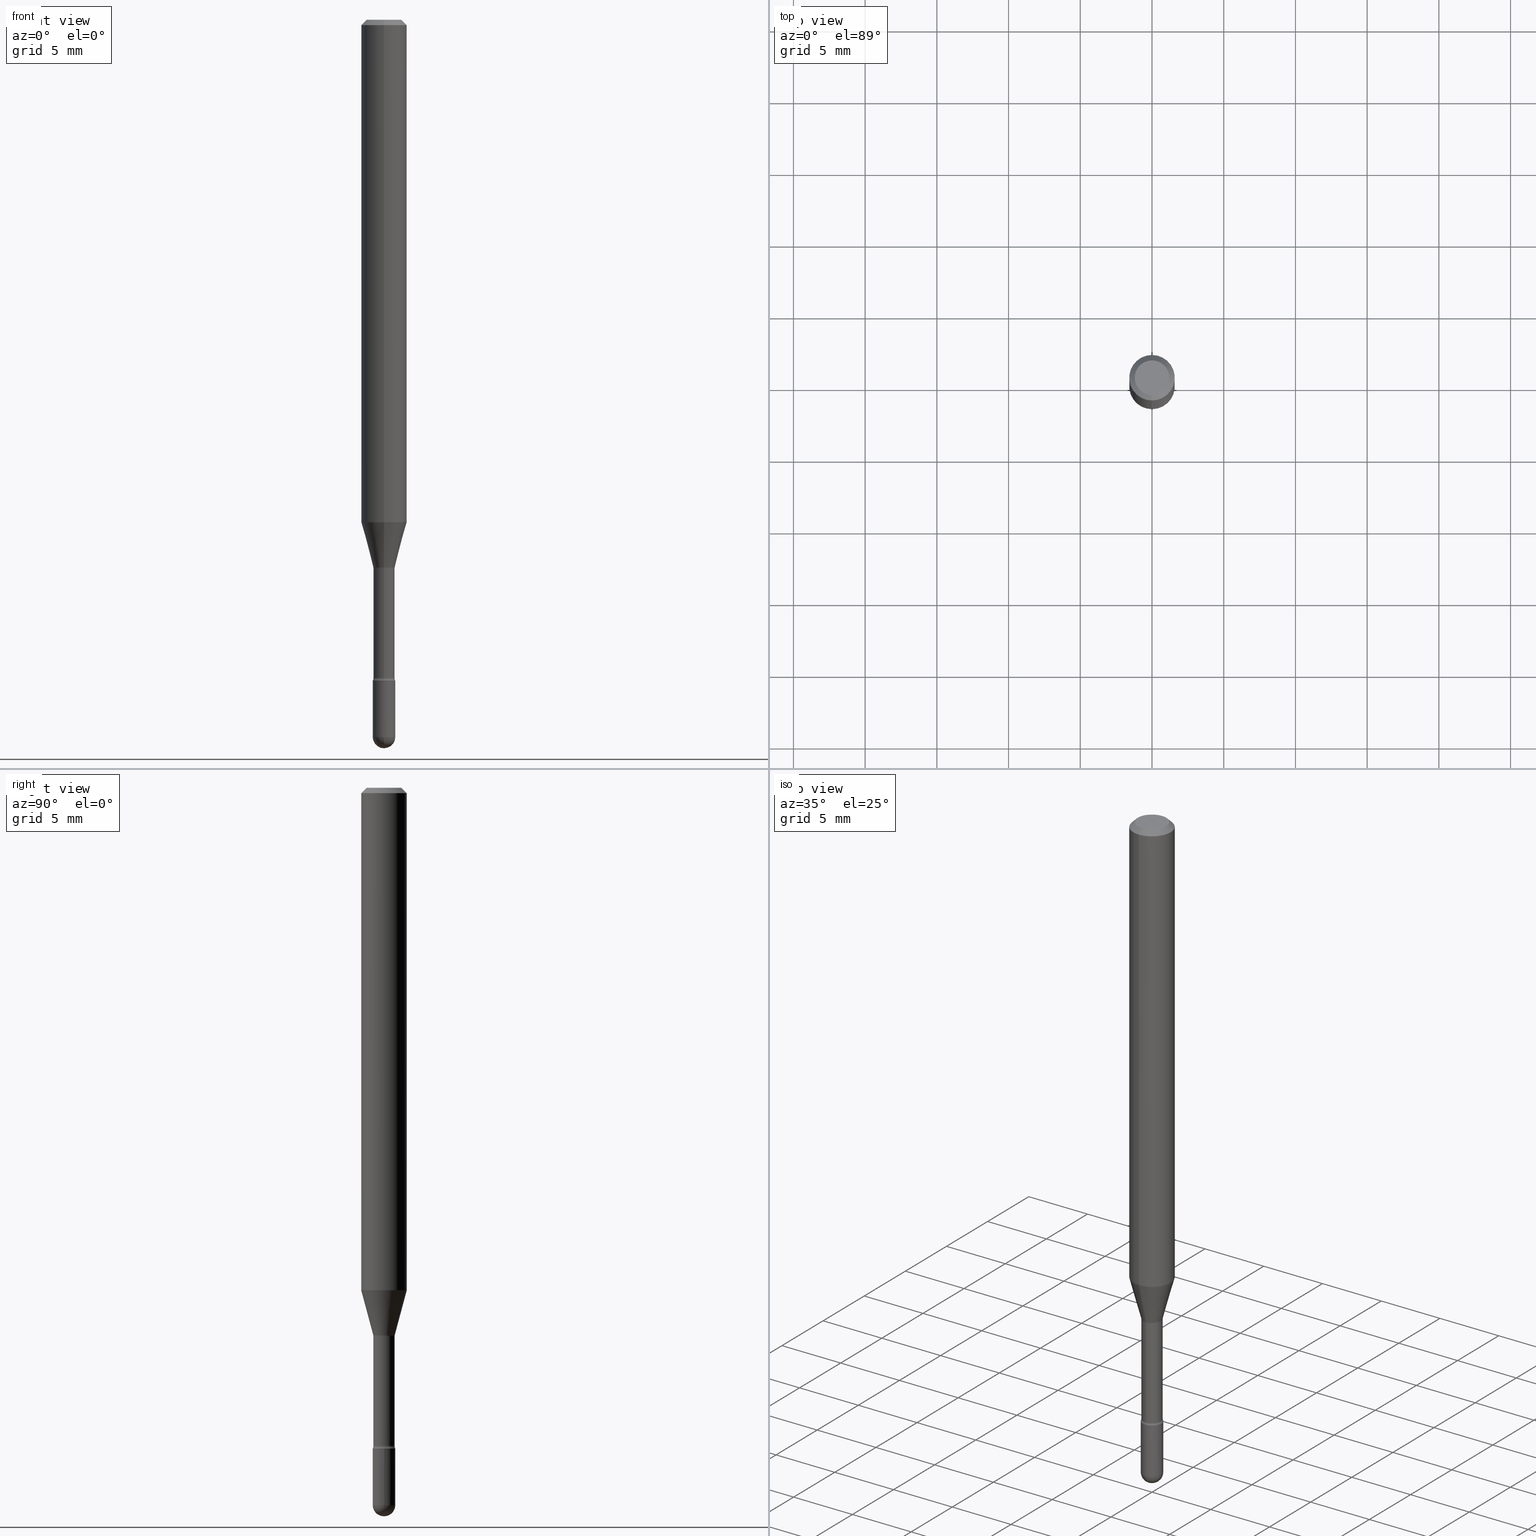
[diagram: canonical four-view strip — front | top / right | iso, engineering-drawing reading convention]
A machine part, canonical four-view strip (front | top / right | iso — engineering-drawing reading convention). The complete STEP part file that produces these views, byte-faithful:
ISO-10303-21;
HEADER;
FILE_DESCRIPTION (( 'STEP AP203' ),
    '1' );
FILE_NAME ('01596.STEP',
    '2024-04-09T20:08:11',
    ( '' ),
    ( '' ),
    'SwSTEP 2.0',
    'SolidWorks 2023',
    '' );
FILE_SCHEMA (( 'CONFIG_CONTROL_DESIGN' ));
ENDSEC;

DATA;
#1 = CARTESIAN_POINT ( 'NONE',  ( 4.815128079378534076E-29, -6.874726756182154000E-15, -1.969000000000000306 ) ) ;
#2 = ORIENTED_EDGE ( 'NONE', *, *, #336, .F. ) ;
#3 = ADVANCED_FACE ( 'NONE', ( #396 ), #367, .T. ) ;
#4 = DIRECTION ( 'NONE',  ( -6.982962677686265922E-15, -1.000000000000000000, 0.000000000000000000 ) ) ;
#5 = VERTEX_POINT ( 'NONE', #11 ) ;
#6 = VERTEX_POINT ( 'NONE', #444 ) ;
#7 = DIRECTION ( 'NONE',  ( -6.982962677686265922E-15, -1.000000000000000000, 0.000000000000000000 ) ) ;
#8 = VECTOR ( 'NONE', #127, 39.37007874015748143 ) ;
#9 = CARTESIAN_POINT ( 'NONE',  ( 3.673298962196712735E-29, -5.244558577962036648E-15, -1.502092501787273271 ) ) ;
#10 = DIRECTION ( 'NONE',  ( -2.445454562768948999E-29, 3.491501736225811078E-15, 1.000000000000000000 ) ) ;
#11 = CARTESIAN_POINT ( 'NONE',  ( -0.03099999999999999978, -6.383868704336178649E-15, -1.969000000000000306 ) ) ;
#12 = EDGE_LOOP ( 'NONE', ( #221, #493, #95, #306 ) ) ;
#13 = DIRECTION ( 'NONE',  ( 6.982962677686265922E-15, 1.000000000000000000, -3.491501736225811078E-15 ) ) ;
#14 = ORIENTED_EDGE ( 'NONE', *, *, #504, .T. ) ;
#15 = PRODUCT_DEFINITION_FORMATION_WITH_SPECIFIED_SOURCE ( 'ANY', '', #121, .NOT_KNOWN. ) ;
#16 = VERTEX_POINT ( 'NONE', #143 ) ;
#17 = ORIENTED_EDGE ( 'NONE', *, *, #355, .T. ) ;
#18 = ORIENTED_EDGE ( 'NONE', *, *, #483, .T. ) ;
#19 = EDGE_CURVE ( 'NONE', #189, #549, #76, .T. ) ;
#20 = ORIENTED_EDGE ( 'NONE', *, *, #110, .F. ) ;
#21 = AXIS2_PLACEMENT_3D ( 'NONE', #422, #75, #419 ) ;
#22 = APPLICATION_PROTOCOL_DEFINITION ( 'international standard', 'config_control_design', 1994, #247 ) ;
#23 = ORIENTED_EDGE ( 'NONE', *, *, #393, .F. ) ;
#24 = DIRECTION ( 'NONE',  ( -6.982962677686265922E-15, -1.000000000000000000, 3.491501736225811078E-15 ) ) ;
#25 = CARTESIAN_POINT ( 'NONE',  ( 2.107548809652055165E-16, 0.02966111260565873833, -1.502092501787273271 ) ) ;
#26 = PERSON_AND_ORGANIZATION ( #415, #431 ) ;
#27 = FACE_OUTER_BOUND ( 'NONE', #178, .T. ) ;
#28 = CIRCLE ( 'NONE', #337, 0.03099999999999999978 ) ;
#29 = AXIS2_PLACEMENT_3D ( 'NONE', #521, #64, #13 ) ;
#30 = PERSON_AND_ORGANIZATION ( #415, #431 ) ;
#31 = CYLINDRICAL_SURFACE ( 'NONE', #206, 0.03099999999999999978 ) ;
#32 = EDGE_CURVE ( 'NONE', #190, #536, #297, .T. ) ;
#33 = PERSON_AND_ORGANIZATION_ROLE ( 'classification_officer' ) ;
#34 = DIRECTION ( 'NONE',  ( 1.000000000000000000, -6.982962677686266711E-15, 4.876176775795935232E-29 ) ) ;
#35 = LOCAL_TIME ( 16, 8, 11.00000000000000000, #423 ) ;
#36 = CARTESIAN_POINT ( 'NONE',  ( 2.023449283951162284E-45, -2.889177747602857165E-31, -8.274606319586870725E-17 ) ) ;
#37 = EDGE_CURVE ( 'NONE', #6, #315, #240, .T. ) ;
#38 = UNCERTAINTY_MEASURE_WITH_UNIT (LENGTH_MEASURE( 1.000000000000000082E-05 ), #545, 'distance_accuracy_value', 'NONE');
#39 = CIRCLE ( 'NONE', #46, 0.04749999999999999362 ) ;
#40 = DATE_TIME_ROLE ( 'classification_date' ) ;
#41 = DIRECTION ( 'NONE',  ( -6.982962677686265922E-15, -1.000000000000000000, 3.491501736225812656E-15 ) ) ;
#42 = ADVANCED_FACE ( 'NONE', ( #120 ), #466, .F. ) ;
#43 = LINE ( 'NONE', #554, #8 ) ;
#44 = DIMENSIONAL_EXPONENTS ( 1.000000000000000000, 0.000000000000000000, 0.000000000000000000, 0.000000000000000000, 0.000000000000000000, 0.000000000000000000, 0.000000000000000000 ) ;
#45 = DIRECTION ( 'NONE',  ( -6.982962677686265922E-15, -1.000000000000000000, 3.491501736225811078E-15 ) ) ;
#46 = AXIS2_PLACEMENT_3D ( 'NONE', #36, #90, #558 ) ;
#47 = CIRCLE ( 'NONE', #447, 0.01500000000000001159 ) ;
#48 = CARTESIAN_POINT ( 'NONE',  ( 0.000000000000000000, 0.000000000000000000, 0.000000000000000000 ) ) ;
#49 = ORIENTED_EDGE ( 'NONE', *, *, #375, .T. ) ;
#50 = DIRECTION ( 'NONE',  ( -6.982962677686266711E-15, -1.000000000000000000, 0.000000000000000000 ) ) ;
#51 = ORIENTED_EDGE ( 'NONE', *, *, #400, .T. ) ;
#52 = VERTEX_POINT ( 'NONE', #465 ) ;
#53 = FACE_OUTER_BOUND ( 'NONE', #346, .T. ) ;
#54 = ORIENTED_EDGE ( 'NONE', *, *, #32, .T. ) ;
#55 = ADVANCED_FACE ( 'NONE', ( #195 ), #457, .T. ) ;
#56 = ORIENTED_EDGE ( 'NONE', *, *, #252, .T. ) ;
#57 = CARTESIAN_POINT ( 'NONE',  ( -1.169113584055446105E-44, 1.669184350826100908E-30, 4.780733988912460139E-16 ) ) ;
#58 = VECTOR ( 'NONE', #430, 39.37007874015748143 ) ;
#59 = TOROIDAL_SURFACE ( 'NONE', #357, 0.04415000000000000174, 0.01500000000000002373 ) ;
#60 = EDGE_LOOP ( 'NONE', ( #304, #437, #106, #63 ) ) ;
#61 = AXIS2_PLACEMENT_3D ( 'NONE', #320, #289, #464 ) ;
#62 = DIRECTION ( 'NONE',  ( -2.445454562768948999E-29, 3.491501736225811078E-15, 1.000000000000000000 ) ) ;
#63 = ORIENTED_EDGE ( 'NONE', *, *, #124, .F. ) ;
#64 = DIRECTION ( 'NONE',  ( 2.445454562768948718E-29, -3.491501736225811078E-15, -1.000000000000000000 ) ) ;
#65 = ORIENTED_EDGE ( 'NONE', *, *, #92, .F. ) ;
#66 = ORIENTED_EDGE ( 'NONE', *, *, #293, .T. ) ;
#67 = FACE_OUTER_BOUND ( 'NONE', #449, .T. ) ;
#68 = AXIS2_PLACEMENT_3D ( 'NONE', #506, #410, #24 ) ;
#69 = CONICAL_SURFACE ( 'NONE', #292, 0.06250000000000000000, 0.7853981633974483900 ) ;
#70 = ADVANCED_FACE ( 'NONE', ( #281 ), #172, .F. ) ;
#71 = PERSON_AND_ORGANIZATION ( #415, #431 ) ;
#72 = DIRECTION ( 'NONE',  ( -2.445468806185136597E-29, 3.491481338843145583E-15, 1.000000000000000000 ) ) ;
#73 = ADVANCED_FACE ( 'NONE', ( #463 ), #31, .T. ) ;
#74 = LINE ( 'NONE', #196, #279 ) ;
#75 = DIRECTION ( 'NONE',  ( 2.445454562768948999E-29, -3.491501736225811078E-15, -1.000000000000000000 ) ) ;
#76 = CIRCLE ( 'NONE', #499, 0.06250000000000000000 ) ;
#77 = AXIS2_PLACEMENT_3D ( 'NONE', #454, #116, #505 ) ;
#78 = CYLINDRICAL_SURFACE ( 'NONE', #115, 0.06250000000000000000 ) ;
#79 = EDGE_CURVE ( 'NONE', #177, #5, #259, .T. ) ;
#80 = CYLINDRICAL_SURFACE ( 'NONE', #188, 0.03099999999999999978 ) ;
#81 = AXIS2_PLACEMENT_3D ( 'NONE', #328, #539, #358 ) ;
#82 = PERSON_AND_ORGANIZATION_ROLE ( 'creator' ) ;
#83 = CARTESIAN_POINT ( 'NONE',  ( -1.169113584055446105E-44, 1.669184350826100908E-30, 4.780733988912460139E-16 ) ) ;
#84 = AXIS2_PLACEMENT_3D ( 'NONE', #57, #10, #183 ) ;
#85 = EDGE_CURVE ( 'NONE', #366, #150, #253, .T. ) ;
#86 = AXIS2_PLACEMENT_3D ( 'NONE', #83, #334, #41 ) ;
#87 = CALENDAR_DATE ( 2024, 9, 4 ) ;
#88 = DIRECTION ( 'NONE',  ( 6.982962677686265922E-15, 1.000000000000000000, 0.000000000000000000 ) ) ;
#89 = ADVANCED_FACE ( 'NONE', ( #27 ), #78, .T. ) ;
#90 = DIRECTION ( 'NONE',  ( -2.445454562768948999E-29, 3.491501736225811078E-15, 1.000000000000000000 ) ) ;
#91 = DIRECTION ( 'NONE',  ( -2.445454562768948999E-29, 3.491501736225811078E-15, 1.000000000000000000 ) ) ;
#92 = EDGE_CURVE ( 'NONE', #150, #366, #525, .T. ) ;
#93 = AXIS2_PLACEMENT_3D ( 'NONE', #473, #330, #427 ) ;
#94 = DIRECTION ( 'NONE',  ( -2.445454562768948999E-29, 3.491501736225811078E-15, 1.000000000000000000 ) ) ;
#95 = ORIENTED_EDGE ( 'NONE', *, *, #393, .T. ) ;
#96 = DIRECTION ( 'NONE',  ( -6.982962677686265922E-15, -1.000000000000000000, 0.000000000000000000 ) ) ;
#97 = EDGE_CURVE ( 'NONE', #549, #189, #290, .T. ) ;
#98 = ORIENTED_EDGE ( 'NONE', *, *, #293, .F. ) ;
#99 = FACE_OUTER_BOUND ( 'NONE', #353, .T. ) ;
#100 = ORIENTED_EDGE ( 'NONE', *, *, #459, .T. ) ;
#101 = CARTESIAN_POINT ( 'NONE',  ( -3.082978022198047432E-16, -0.04415000000000634389, -1.806783525791634482 ) ) ;
#102 = CIRCLE ( 'NONE', #428, 0.04749999999999999362 ) ;
#103 = AXIS2_PLACEMENT_3D ( 'NONE', #349, #341, #450 ) ;
#104 = EDGE_LOOP ( 'NONE', ( #480, #360, #181, #220 ) ) ;
#105 = CARTESIAN_POINT ( 'NONE',  ( 3.682792915418375153E-29, -5.258113585142194453E-15, -1.505974787463811193 ) ) ;
#106 = ORIENTED_EDGE ( 'NONE', *, *, #436, .T. ) ;
#107 = PERSON_AND_ORGANIZATION ( #415, #431 ) ;
#108 = CC_DESIGN_APPROVAL ( #228, ( #15 ) ) ;
#109 = ORIENTED_EDGE ( 'NONE', *, *, #400, .F. ) ;
#110 = EDGE_CURVE ( 'NONE', #5, #434, #546, .T. ) ;
#111 = DIRECTION ( 'NONE',  ( -2.445468806185136877E-29, 3.491481338843145188E-15, 1.000000000000000000 ) ) ;
#112 = CALENDAR_DATE ( 2024, 9, 4 ) ;
#113 = CIRCLE ( 'NONE', #553, 0.02966111260566398414 ) ;
#114 = CARTESIAN_POINT ( 'NONE',  ( 0.03099999999999999978, -6.550018991669739348E-15, -1.813999999999999835 ) ) ;
#115 = AXIS2_PLACEMENT_3D ( 'NONE', #460, #277, #284 ) ;
#116 = DIRECTION ( 'NONE',  ( -2.445454562768948999E-29, 3.491501736225811078E-15, 1.000000000000000000 ) ) ;
#117 = ORIENTED_EDGE ( 'NONE', *, *, #37, .F. ) ;
#118 = DIRECTION ( 'NONE',  ( 1.839019923739598738E-15, 0.2588190451025247363, 0.9659258262890673130 ) ) ;
#119 = APPROVAL_STATUS ( 'not_yet_approved' ) ;
#120 = FACE_OUTER_BOUND ( 'NONE', #12, .T. ) ;
#121 = PRODUCT ( '01596', '01596', '', ( #197 ) ) ;
#122 = DIRECTION ( 'NONE',  ( -2.445454562768948999E-29, 3.491501736225811078E-15, 1.000000000000000000 ) ) ;
#123 = CIRCLE ( 'NONE', #166, 0.02915000000000002311 ) ;
#124 = EDGE_CURVE ( 'NONE', #453, #315, #233, .T. ) ;
#125 = APPROVAL_DATE_TIME ( #339, #382 ) ;
#126 = CARTESIAN_POINT ( 'NONE',  ( 2.164718430083224270E-16, 0.03099999999999312680, -1.969000000000000306 ) ) ;
#127 = DIRECTION ( 'NONE',  ( -2.445454562768948999E-29, 3.491501736225811078E-15, 1.000000000000000000 ) ) ;
#128 = DIRECTION ( 'NONE',  ( -6.982962677686265922E-15, -1.000000000000000000, 3.491501736225811078E-15 ) ) ;
#129 = AXIS2_PLACEMENT_3D ( 'NONE', #512, #132, #45 ) ;
#130 = AXIS2_PLACEMENT_3D ( 'NONE', #311, #148, #395 ) ;
#131 = PERSON_AND_ORGANIZATION ( #415, #431 ) ;
#132 = DIRECTION ( 'NONE',  ( -2.445454562768948718E-29, 3.491501736225811078E-15, 1.000000000000000000 ) ) ;
#133 = ADVANCED_FACE ( 'NONE', ( #67 ), #472, .F. ) ;
#134 = FACE_OUTER_BOUND ( 'NONE', #526, .T. ) ;
#135 = CC_DESIGN_PERSON_AND_ORGANIZATION_ASSIGNMENT ( #420, #82, ( #15 ) ) ;
#136 = CARTESIAN_POINT ( 'NONE',  ( 4.815128079378534076E-29, -6.874726756182154000E-15, -1.969000000000000306 ) ) ;
#137 = EDGE_LOOP ( 'NONE', ( #276, #407, #194, #186 ) ) ;
#138 = ADVANCED_FACE ( 'NONE', ( #235 ), #362, .T. ) ;
#139 = VECTOR ( 'NONE', #474, 39.37007874015748143 ) ;
#140 = CARTESIAN_POINT ( 'NONE',  ( 3.682792915418375153E-29, -5.258113585142194453E-15, -1.505974787463811193 ) ) ;
#141 = ORIENTED_EDGE ( 'NONE', *, *, #37, .T. ) ;
#142 = CYLINDRICAL_SURFACE ( 'NONE', #338, 0.06250000000000000000 ) ;
#143 = CARTESIAN_POINT ( 'NONE',  ( -2.202682480855828862E-16, -0.03100000000000687969, -1.969000000000000306 ) ) ;
#144 = ORIENTED_EDGE ( 'NONE', *, *, #198, .F. ) ;
#145 = APPROVAL_PERSON_ORGANIZATION ( #173, #382, #256 ) ;
#146 = DIRECTION ( 'NONE',  ( -4.851104656540964275E-15, -0.7071067811865500152, -0.7071067811865450192 ) ) ;
#147 = VERTEX_POINT ( 'NONE', #114 ) ;
#148 = DIRECTION ( 'NONE',  ( -2.445454562768948999E-29, 3.491501736225811078E-15, 1.000000000000000000 ) ) ;
#149 = AXIS2_PLACEMENT_3D ( 'NONE', #550, #429, #255 ) ;
#150 = VERTEX_POINT ( 'NONE', #237 ) ;
#151 = CIRCLE ( 'NONE', #467, 0.02915000000000002311 ) ;
#152 =( NAMED_UNIT ( * ) PLANE_ANGLE_UNIT ( ) SI_UNIT ( $, .RADIAN. ) );
#153 = CARTESIAN_POINT ( 'NONE',  ( 3.373592863864740573E-29, -4.816652707775393500E-15, -1.379536105567578330 ) ) ;
#154 = DIRECTION ( 'NONE',  ( -2.438088387897960049E-29, 3.491481338843145188E-15, 1.000000000000000000 ) ) ;
#155 = ORIENTED_EDGE ( 'NONE', *, *, #97, .T. ) ;
#156 = EDGE_CURVE ( 'NONE', #397, #366, #413, .T. ) ;
#157 = DATE_TIME_ROLE ( 'creation_date' ) ;
#158 = CIRCLE ( 'NONE', #77, 0.02966111260566398414 ) ;
#159 = ORIENTED_EDGE ( 'NONE', *, *, #348, .T. ) ;
#160 = CARTESIAN_POINT ( 'NONE',  ( 0.000000000000000000, 0.000000000000000000, 0.000000000000000000 ) ) ;
#161 = AXIS2_PLACEMENT_3D ( 'NONE', #9, #350, #529 ) ;
#162 = DIRECTION ( 'NONE',  ( -2.445468806185136597E-29, 3.491481338843145583E-15, 1.000000000000000000 ) ) ;
#163 = PERSON_AND_ORGANIZATION_ROLE ( 'design_owner' ) ;
#164 = CARTESIAN_POINT ( 'NONE',  ( 3.373592863864740573E-29, -4.816652707775393500E-15, -1.379536105567578330 ) ) ;
#165 = DIRECTION ( 'NONE',  ( -2.445454562768948999E-29, 3.491501736225811078E-15, 1.000000000000000000 ) ) ;
#166 = AXIS2_PLACEMENT_3D ( 'NONE', #248, #91, #424 ) ;
#167 = CIRCLE ( 'NONE', #527, 0.02914999999999999883 ) ;
#168 = EDGE_CURVE ( 'NONE', #453, #150, #74, .T. ) ;
#169 = DIRECTION ( 'NONE',  ( -2.445468806185136877E-29, 3.491481338843145188E-15, 1.000000000000000000 ) ) ;
#170 = PRODUCT_RELATED_PRODUCT_CATEGORY ( 'detail', '', ( #121 ) ) ;
#171 = FACE_OUTER_BOUND ( 'NONE', #487, .T. ) ;
#172 = TOROIDAL_SURFACE ( 'NONE', #563, 0.04415000000000000174, 0.01500000000000002373 ) ;
#173 = PERSON_AND_ORGANIZATION ( #415, #431 ) ;
#174 = CARTESIAN_POINT ( 'NONE',  ( 4.440892098500961428E-16, 0.06249999999999514971, -1.379536105567578552 ) ) ;
#175 = LOCAL_TIME ( 16, 8, 11.00000000000000000, #547 ) ;
#176 = CARTESIAN_POINT ( 'NONE',  ( 4.436054576862872544E-29, -6.333584149513619826E-15, -1.813999999999999835 ) ) ;
#177 = VERTEX_POINT ( 'NONE', #126 ) ;
#178 = EDGE_LOOP ( 'NONE', ( #227, #264, #541, #224 ) ) ;
#179 = VECTOR ( 'NONE', #111, 39.37007874015748143 ) ;
#180 = CARTESIAN_POINT ( 'NONE',  ( -2.071224423039644956E-16, -0.02966111260566922994, -1.502092501787273271 ) ) ;
#181 = ORIENTED_EDGE ( 'NONE', *, *, #298, .T. ) ;
#182 = ORIENTED_EDGE ( 'NONE', *, *, #355, .F. ) ;
#183 = DIRECTION ( 'NONE',  ( -6.982962677686265922E-15, -1.000000000000000000, 3.491501736225812656E-15 ) ) ;
#184 = DIRECTION ( 'NONE',  ( -6.982962677686265922E-15, -1.000000000000000000, 3.483106191921935554E-15 ) ) ;
#185 = DIRECTION ( 'NONE',  ( -6.982962677686265922E-15, -1.000000000000000000, 3.491501736225811472E-15 ) ) ;
#186 = ORIENTED_EDGE ( 'NONE', *, *, #85, .F. ) ;
#187 = ORIENTED_EDGE ( 'NONE', *, *, #459, .F. ) ;
#188 = AXIS2_PLACEMENT_3D ( 'NONE', #48, #299, #251 ) ;
#189 = VERTEX_POINT ( 'NONE', #296 ) ;
#190 = VERTEX_POINT ( 'NONE', #300 ) ;
#191 = CC_DESIGN_PERSON_AND_ORGANIZATION_ASSIGNMENT ( #71, #236, ( #560 ) ) ;
#192 = ORIENTED_EDGE ( 'NONE', *, *, #336, .T. ) ;
#193 = CARTESIAN_POINT ( 'NONE',  ( 2.202682480856753802E-16, 0.03099999999999367151, -1.813999999999999835 ) ) ;
#194 = ORIENTED_EDGE ( 'NONE', *, *, #168, .T. ) ;
#195 = FACE_OUTER_BOUND ( 'NONE', #104, .T. ) ;
#196 = CARTESIAN_POINT ( 'NONE',  ( -2.071224423039644956E-16, -0.02966111260566922994, -1.502092501787273271 ) ) ;
#197 = MECHANICAL_CONTEXT ( 'NONE', #388, 'mechanical' ) ;
#198 = EDGE_CURVE ( 'NONE', #461, #345, #39, .T. ) ;
#199 = AXIS2_PLACEMENT_3D ( 'NONE', #245, #502, #456 ) ;
#200 = DIRECTION ( 'NONE',  ( -2.445454562768948999E-29, 3.491501736225811078E-15, 1.000000000000000000 ) ) ;
#201 =( NAMED_UNIT ( * ) SI_UNIT ( $, .STERADIAN. ) SOLID_ANGLE_UNIT ( ) );
#202 = CARTESIAN_POINT ( 'NONE',  ( 4.418432751852640684E-29, -6.308350963630715621E-15, -1.806783525791634704 ) ) ;
#203 = DIRECTION ( 'NONE',  ( -2.445468806185136597E-29, 3.491481338843145583E-15, 1.000000000000000000 ) ) ;
#204 = PERSON_AND_ORGANIZATION_ROLE ( 'design_supplier' ) ;
#205 = DIRECTION ( 'NONE',  ( 7.105427357601001859E-15, 1.000000000000000000, 0.000000000000000000 ) ) ;
#206 = AXIS2_PLACEMENT_3D ( 'NONE', #160, #72, #34 ) ;
#207 = LINE ( 'NONE', #519, #139 ) ;
#208 = SECURITY_CLASSIFICATION_LEVEL ( 'unclassified' ) ;
#209 = DIRECTION ( 'NONE',  ( 4.937700262164548042E-15, 0.7071067811865451302, -0.7071067811865499042 ) ) ;
#210 = APPROVAL ( #500, 'UNSPECIFIED' ) ;
#211 = CARTESIAN_POINT ( 'NONE',  ( 4.440892098500625669E-16, 0.06250000000000000000, 2.598545403771328462E-16 ) ) ;
#212 = CIRCLE ( 'NONE', #93, 0.03100000000000001019 ) ;
#213 = MANIFOLD_SOLID_BREP ( 'Body-Move/Copy2[2]', #335 ) ;
#214 = CIRCLE ( 'NONE', #61, 0.03099999999999999978 ) ;
#215 = CARTESIAN_POINT ( 'NONE',  ( 0.03099999999999999978, -2.164718430082742572E-16, 1.511614800496739984E-30 ) ) ;
#216 = EDGE_CURVE ( 'NONE', #397, #267, #347, .T. ) ;
#217 = DIRECTION ( 'NONE',  ( -2.445454562768948999E-29, 3.491501736225811078E-15, 1.000000000000000000 ) ) ;
#218 = ORIENTED_EDGE ( 'NONE', *, *, #298, .F. ) ;
#219 = CARTESIAN_POINT ( 'NONE',  ( 0.03099999999999999978, -6.820608795430084234E-15, -1.969000000000000306 ) ) ;
#220 = ORIENTED_EDGE ( 'NONE', *, *, #19, .T. ) ;
#221 = ORIENTED_EDGE ( 'NONE', *, *, #32, .F. ) ;
#222 = AXIS2_PLACEMENT_3D ( 'NONE', #380, #520, #205 ) ;
#223 = DIRECTION ( 'NONE',  ( 1.000000000000000000, -6.982962677686270655E-15, 0.000000000000000000 ) ) ;
#224 = ORIENTED_EDGE ( 'NONE', *, *, #19, .F. ) ;
#225 = CARTESIAN_POINT ( 'NONE',  ( 3.840629472727447874E-16, 0.04749999999999999362, -2.485923956665947374E-16 ) ) ;
#226 = ADVANCED_FACE ( 'NONE', ( #516 ), #561, .T. ) ;
#227 = ORIENTED_EDGE ( 'NONE', *, *, #303, .F. ) ;
#228 = APPROVAL ( #119, 'UNSPECIFIED' ) ;
#229 = CC_DESIGN_SECURITY_CLASSIFICATION ( #239, ( #15 ) ) ;
#230 = DATE_AND_TIME ( #542, #392 ) ;
#231 = EDGE_LOOP ( 'NONE', ( #522, #18, #438, #537 ) ) ;
#232 = APPROVAL_ROLE ( '' ) ;
#233 = CIRCLE ( 'NONE', #199, 0.01500000000000001853 ) ;
#234 = ADVANCED_FACE ( 'NONE', ( #470 ), #59, .F. ) ;
#235 = FACE_OUTER_BOUND ( 'NONE', #356, .T. ) ;
#236 = PERSON_AND_ORGANIZATION_ROLE ( 'creator' ) ;
#237 = CARTESIAN_POINT ( 'NONE',  ( -4.364351673553580935E-16, -0.06250000000000484335, -1.379536105567578108 ) ) ;
#238 = ORIENTED_EDGE ( 'NONE', *, *, #515, .F. ) ;
#239 = SECURITY_CLASSIFICATION ( '', '', #208 ) ;
#240 = LINE ( 'NONE', #288, #426 ) ;
#241 =( LENGTH_UNIT ( ) NAMED_UNIT ( * ) SI_UNIT ( $, .METRE. ) );
#242 = AXIS2_PLACEMENT_3D ( 'NONE', #352, #531, #271 ) ;
#243 = CARTESIAN_POINT ( 'NONE',  ( 3.682814365644040998E-29, -5.258082867198169507E-15, -1.505974787463811193 ) ) ;
#244 = PERSON_AND_ORGANIZATION ( #415, #431 ) ;
#245 = CARTESIAN_POINT ( 'NONE',  ( -3.082978022198118430E-16, -0.04415000000000526142, -1.505974787463810971 ) ) ;
#246 = ADVANCED_FACE ( 'NONE', ( #340 ), #475, .T. ) ;
#247 = APPLICATION_CONTEXT ( 'configuration controlled 3d designs of mechanical parts and assemblies' ) ;
#248 = CARTESIAN_POINT ( 'NONE',  ( 4.418407017082921517E-29, -6.308387817285686154E-15, -1.806783525791634704 ) ) ;
#249 = LOCAL_TIME ( 16, 8, 11.00000000000000000, #381 ) ;
#250 = APPROVAL_DATE_TIME ( #471, #228 ) ;
#251 = DIRECTION ( 'NONE',  ( 1.000000000000000000, -6.982962677686266711E-15, 4.876176775795935232E-29 ) ) ;
#252 = EDGE_CURVE ( 'NONE', #52, #16, #212, .T. ) ;
#253 = CIRCLE ( 'NONE', #433, 0.06250000000000000000 ) ;
#254 = VECTOR ( 'NONE', #146, 39.37007874015748143 ) ;
#255 = DIRECTION ( 'NONE',  ( 6.982962677686265922E-15, 1.000000000000000000, 0.000000000000000000 ) ) ;
#256 = APPROVAL_ROLE ( '' ) ;
#257 = PLANE ( 'NONE',  #129 ) ;
#258 = CARTESIAN_POINT ( 'NONE',  ( 4.364351673553919652E-16, 0.06249999999999995143, -0.01500000000000030129 ) ) ;
#259 = CIRCLE ( 'NONE', #488, 0.03099999999999999978 ) ;
#260 = DIRECTION ( 'NONE',  ( -6.982962677686265922E-15, -1.000000000000000000, 0.000000000000000000 ) ) ;
#261 = ORIENTED_EDGE ( 'NONE', *, *, #79, .F. ) ;
#262 = ADVANCED_FACE ( 'NONE', ( #134 ), #257, .F. ) ;
#263 = CARTESIAN_POINT ( 'NONE',  ( 3.673298962196712735E-29, -5.244558577962036648E-15, -1.502092501787273271 ) ) ;
#264 = ORIENTED_EDGE ( 'NONE', *, *, #85, .T. ) ;
#265 = ORIENTED_EDGE ( 'NONE', *, *, #168, .F. ) ;
#266 = DIRECTION ( 'NONE',  ( 6.982962677686265922E-15, 1.000000000000000000, 0.000000000000000000 ) ) ;
#267 = VERTEX_POINT ( 'NONE', #469 ) ;
#268 = CLOSED_SHELL ( 'NONE', ( #275, #246, #138, #226, #73 ) ) ;
#269 = AXIS2_PLACEMENT_3D ( 'NONE', #540, #154, #497 ) ;
#270 = PLANE ( 'NONE',  #29 ) ;
#271 = DIRECTION ( 'NONE',  ( 7.105427357601001859E-15, 1.000000000000000000, 0.000000000000000000 ) ) ;
#272 = DIRECTION ( 'NONE',  ( -6.982962677686266711E-15, -1.000000000000000000, 3.491501736225811078E-15 ) ) ;
#273 = EDGE_LOOP ( 'NONE', ( #405, #391, #65, #265 ) ) ;
#274 = APPROVAL_PERSON_ORGANIZATION ( #107, #210, #232 ) ;
#275 = ADVANCED_FACE ( 'NONE', ( #333 ), #80, .T. ) ;
#276 = ORIENTED_EDGE ( 'NONE', *, *, #156, .F. ) ;
#277 = DIRECTION ( 'NONE',  ( -2.445454562768948999E-29, 3.491501736225811078E-15, 1.000000000000000000 ) ) ;
#278 = DATE_AND_TIME ( #112, #514 ) ;
#279 = VECTOR ( 'NONE', #364, 39.37007874015748854 ) ;
#280 = AXIS2_PLACEMENT_3D ( 'NONE', #490, #439, #266 ) ;
#281 = FACE_OUTER_BOUND ( 'NONE', #455, .T. ) ;
#282 = EDGE_CURVE ( 'NONE', #150, #549, #43, .T. ) ;
#283 = CARTESIAN_POINT ( 'NONE',  ( 4.436080414419837365E-29, -6.333547148661465016E-15, -1.813999999999999835 ) ) ;
#284 = DIRECTION ( 'NONE',  ( -6.982962677686265922E-15, -1.000000000000000000, 3.491501736225811472E-15 ) ) ;
#285 = CARTESIAN_POINT ( 'NONE',  ( 4.418407017082921517E-29, -6.308387817285686154E-15, -1.806783525791634704 ) ) ;
#286 = APPROVAL_PERSON_ORGANIZATION ( #26, #228, #372 ) ;
#287 = ORIENTED_EDGE ( 'NONE', *, *, #110, .T. ) ;
#288 = CARTESIAN_POINT ( 'NONE',  ( -2.035533620545547363E-16, -0.02915000000000001271, 5.798506745022284947E-16 ) ) ;
#289 = DIRECTION ( 'NONE',  ( -2.445468806185136597E-29, 3.491481338843145583E-15, 1.000000000000000000 ) ) ;
#290 = CIRCLE ( 'NONE', #417, 0.06250000000000000000 ) ;
#291 = CARTESIAN_POINT ( 'NONE',  ( 3.668181844153443834E-31, -5.237252604338745805E-17, -0.01500000000000008271 ) ) ;
#292 = AXIS2_PLACEMENT_3D ( 'NONE', #532, #344, #305 ) ;
#293 = EDGE_CURVE ( 'NONE', #190, #6, #123, .T. ) ;
#294 = LINE ( 'NONE', #258, #325 ) ;
#295 = DESIGN_CONTEXT ( 'detailed design', #247, 'design' ) ;
#296 = CARTESIAN_POINT ( 'NONE',  ( 4.440892098500965372E-16, 0.06249999999999995837, -0.01500000000000030129 ) ) ;
#297 = CIRCLE ( 'NONE', #242, 0.01500000000000001159 ) ;
#298 = EDGE_CURVE ( 'NONE', #345, #189, #294, .T. ) ;
#299 = DIRECTION ( 'NONE',  ( -2.445468806185136597E-29, 3.491481338843145583E-15, 1.000000000000000000 ) ) ;
#300 = CARTESIAN_POINT ( 'NONE',  ( 2.136957277798944871E-16, 0.02914999999999371566, -1.806783525791634704 ) ) ;
#301 = ORIENTED_EDGE ( 'NONE', *, *, #216, .F. ) ;
#302 = DIRECTION ( 'NONE',  ( -2.445454562768948999E-29, 3.491501736225811078E-15, 1.000000000000000000 ) ) ;
#303 = EDGE_CURVE ( 'NONE', #366, #189, #377, .T. ) ;
#304 = ORIENTED_EDGE ( 'NONE', *, *, #510, .F. ) ;
#305 = DIRECTION ( 'NONE',  ( 6.982962677686265922E-15, 1.000000000000000000, -3.483106191921935554E-15 ) ) ;
#306 = ORIENTED_EDGE ( 'NONE', *, *, #385, .T. ) ;
#307 = EDGE_LOOP ( 'NONE', ( #312, #287, #322, #412, #394 ) ) ;
#308 = CARTESIAN_POINT ( 'NONE',  ( -3.773273898774340269E-16, -0.04749999999999999362, 8.310026927485731057E-17 ) ) ;
#309 = CARTESIAN_POINT ( 'NONE',  ( 3.668181844153443834E-31, -5.237252604338745805E-17, -0.01500000000000008271 ) ) ;
#310 = ADVANCED_BREP_SHAPE_REPRESENTATION ( '01596', ( #403, #213, #81 ), #319 ) ;
#311 = CARTESIAN_POINT ( 'NONE',  ( 4.436054576862872544E-29, -6.333584149513619826E-15, -1.813999999999999835 ) ) ;
#312 = ORIENTED_EDGE ( 'NONE', *, *, #79, .T. ) ;
#313 = AXIS2_PLACEMENT_3D ( 'NONE', #202, #370, #321 ) ;
#314 = CARTESIAN_POINT ( 'NONE',  ( -1.169113584055446105E-44, 1.669184350826100908E-30, 4.780733988912460139E-16 ) ) ;
#315 = VERTEX_POINT ( 'NONE', #432 ) ;
#316 = EDGE_CURVE ( 'NONE', #343, #147, #332, .T. ) ;
#317 = ORIENTED_EDGE ( 'NONE', *, *, #385, .F. ) ;
#318 = DIRECTION ( 'NONE',  ( -2.445454562768948999E-29, 3.491501736225811078E-15, 1.000000000000000000 ) ) ;
#319 =( GEOMETRIC_REPRESENTATION_CONTEXT ( 3 ) GLOBAL_UNCERTAINTY_ASSIGNED_CONTEXT ( ( #38 ) ) GLOBAL_UNIT_ASSIGNED_CONTEXT ( ( #545, #152, #201 ) ) REPRESENTATION_CONTEXT ( 'NONE', 'WORKASPACE' ) );
#320 = CARTESIAN_POINT ( 'NONE',  ( 4.815128079378534076E-29, -6.874726756182154000E-15, -1.969000000000000306 ) ) ;
#321 = DIRECTION ( 'NONE',  ( -6.982962677686265922E-15, -1.000000000000000000, 3.491501736225811078E-15 ) ) ;
#322 = ORIENTED_EDGE ( 'NONE', *, *, #524, .F. ) ;
#323 = CIRCLE ( 'NONE', #280, 0.03100000000000001019 ) ;
#324 = DIRECTION ( 'NONE',  ( -6.982962677686265922E-15, -1.000000000000000000, 0.000000000000000000 ) ) ;
#325 = VECTOR ( 'NONE', #209, 39.37007874015748143 ) ;
#326 = ORIENTED_EDGE ( 'NONE', *, *, #198, .T. ) ;
#327 = DIRECTION ( 'NONE',  ( -6.982962677686265922E-15, -1.000000000000000000, 3.483106191921935554E-15 ) ) ;
#328 = CARTESIAN_POINT ( 'NONE',  ( 0.000000000000000000, 0.000000000000000000, 0.000000000000000000 ) ) ;
#329 = DIRECTION ( 'NONE',  ( -2.445454562768948999E-29, 3.491501736225811078E-15, 1.000000000000000000 ) ) ;
#330 = DIRECTION ( 'NONE',  ( -1.000000000000000000, 7.105427357601001070E-15, -4.926315508542082329E-29 ) ) ;
#331 = ADVANCED_FACE ( 'NONE', ( #171 ), #513, .T. ) ;
#332 = LINE ( 'NONE', #215, #477 ) ;
#333 = FACE_OUTER_BOUND ( 'NONE', #307, .T. ) ;
#334 = DIRECTION ( 'NONE',  ( -2.445454562768948999E-29, 3.491501736225811078E-15, 1.000000000000000000 ) ) ;
#335 = CLOSED_SHELL ( 'NONE', ( #234, #489, #133, #451, #425, #442, #3, #89, #55, #421, #262, #42, #331, #70 ) ) ;
#336 = EDGE_CURVE ( 'NONE', #190, #267, #207, .T. ) ;
#337 = AXIS2_PLACEMENT_3D ( 'NONE', #176, #217, #7 ) ;
#338 = AXIS2_PLACEMENT_3D ( 'NONE', #314, #302, #185 ) ;
#339 = DATE_AND_TIME ( #87, #35 ) ;
#340 = FACE_OUTER_BOUND ( 'NONE', #482, .T. ) ;
#341 = DIRECTION ( 'NONE',  ( -2.445468806185136597E-29, 3.491481338843145583E-15, 1.000000000000000000 ) ) ;
#342 = CC_DESIGN_APPROVAL ( #210, ( #560 ) ) ;
#343 = VERTEX_POINT ( 'NONE', #219 ) ;
#344 = DIRECTION ( 'NONE',  ( 2.445454562768948999E-29, -3.491501736225811078E-15, -1.000000000000000000 ) ) ;
#345 = VERTEX_POINT ( 'NONE', #225 ) ;
#346 = EDGE_LOOP ( 'NONE', ( #401, #192, #187, #117 ) ) ;
#347 = CIRCLE ( 'NONE', #222, 0.01500000000000001853 ) ;
#348 = EDGE_CURVE ( 'NONE', #16, #343, #398, .T. ) ;
#349 = CARTESIAN_POINT ( 'NONE',  ( 4.436080414419837365E-29, -6.333547148661465016E-15, -1.813999999999999835 ) ) ;
#350 = DIRECTION ( 'NONE',  ( -2.445454562768948999E-29, 3.491501736225811078E-15, 1.000000000000000000 ) ) ;
#351 = LINE ( 'NONE', #530, #254 ) ;
#352 = CARTESIAN_POINT ( 'NONE',  ( 3.137046178381285686E-16, 0.04414999999999372898, -1.806783525791634926 ) ) ;
#353 = EDGE_LOOP ( 'NONE', ( #446, #326 ) ) ;
#354 = CARTESIAN_POINT ( 'NONE',  ( -0.03099999999999999978, -6.383868704336178649E-15, -1.813999999999999835 ) ) ;
#355 = EDGE_CURVE ( 'NONE', #5, #16, #445, .T. ) ;
#356 = EDGE_LOOP ( 'NONE', ( #359, #51 ) ) ;
#357 = AXIS2_PLACEMENT_3D ( 'NONE', #379, #165, #128 ) ;
#358 = DIRECTION ( 'NONE',  ( 1.000000000000000000, 0.000000000000000000, 0.000000000000000000 ) ) ;
#359 = ORIENTED_EDGE ( 'NONE', *, *, #524, .T. ) ;
#360 = ORIENTED_EDGE ( 'NONE', *, *, #378, .F. ) ;
#361 = CARTESIAN_POINT ( 'NONE',  ( 3.673298962196712735E-29, -5.244558577962036648E-15, -1.502092501787273271 ) ) ;
#362 = PLANE ( 'NONE',  #269 ) ;
#363 = COORDINATED_UNIVERSAL_TIME_OFFSET ( 5, 0, .BEHIND. ) ;
#364 = DIRECTION ( 'NONE',  ( -1.807323732225328562E-15, -0.2588190451025179639, 0.9659258262890690894 ) ) ;
#365 = VERTEX_POINT ( 'NONE', #448 ) ;
#366 = VERTEX_POINT ( 'NONE', #174 ) ;
#367 = CONICAL_SURFACE ( 'NONE', #161, 0.02966111260566398414, 0.2617993877991500740 ) ;
#368 = LENGTH_MEASURE_WITH_UNIT ( LENGTH_MEASURE( 0.02539999999999999897 ), #241 );
#369 = AXIS2_PLACEMENT_3D ( 'NONE', #136, #523, #486 ) ;
#370 = DIRECTION ( 'NONE',  ( -2.445454562768948999E-29, 3.491501736225811078E-15, 1.000000000000000000 ) ) ;
#371 = PRODUCT_DEFINITION_SHAPE ( 'NONE', 'NONE',  #560 ) ;
#372 = APPROVAL_ROLE ( '' ) ;
#373 = DIRECTION ( 'NONE',  ( 1.000000000000000000, -6.982962677686270655E-15, 0.000000000000000000 ) ) ;
#374 = DIRECTION ( 'NONE',  ( -6.982962677686265922E-15, -1.000000000000000000, 4.370956789862821150E-15 ) ) ;
#375 = EDGE_CURVE ( 'NONE', #536, #365, #28, .T. ) ;
#376 = DATE_AND_TIME ( #562, #249 ) ;
#377 = LINE ( 'NONE', #211, #58 ) ;
#378 = EDGE_CURVE ( 'NONE', #345, #461, #102, .T. ) ;
#379 = CARTESIAN_POINT ( 'NONE',  ( 3.682814365644040998E-29, -5.258082867198169507E-15, -1.505974787463811193 ) ) ;
#380 = CARTESIAN_POINT ( 'NONE',  ( 3.137046178381209758E-16, 0.04414999999999474206, -1.505974787463811415 ) ) ;
#381 = COORDINATED_UNIVERSAL_TIME_OFFSET ( 5, 0, .BEHIND. ) ;
#382 = APPROVAL ( #556, 'UNSPECIFIED' ) ;
#383 = CARTESIAN_POINT ( 'NONE',  ( 4.815128079378533515E-29, -6.874726756182153211E-15, -1.968999999999999861 ) ) ;
#384 = AXIS2_PLACEMENT_3D ( 'NONE', #153, #200, #374 ) ;
#385 = EDGE_CURVE ( 'NONE', #365, #536, #478, .T. ) ;
#386 = CIRCLE ( 'NONE', #511, 0.03099999999999999978 ) ;
#387 = FACE_OUTER_BOUND ( 'NONE', #273, .T. ) ;
#388 = APPLICATION_CONTEXT ( 'configuration controlled 3d designs of mechanical parts and assemblies' ) ;
#389 = ORIENTED_EDGE ( 'NONE', *, *, #316, .T. ) ;
#390 = FACE_OUTER_BOUND ( 'NONE', #404, .T. ) ;
#391 = ORIENTED_EDGE ( 'NONE', *, *, #156, .T. ) ;
#392 = LOCAL_TIME ( 16, 8, 11.00000000000000000, #363 ) ;
#393 = EDGE_CURVE ( 'NONE', #6, #365, #47, .T. ) ;
#394 = ORIENTED_EDGE ( 'NONE', *, *, #555, .T. ) ;
#395 = DIRECTION ( 'NONE',  ( -6.982962677686265922E-15, -1.000000000000000000, 0.000000000000000000 ) ) ;
#396 = FACE_OUTER_BOUND ( 'NONE', #137, .T. ) ;
#397 = VERTEX_POINT ( 'NONE', #476 ) ;
#398 = CIRCLE ( 'NONE', #369, 0.03099999999999999978 ) ;
#399 = DIRECTION ( 'NONE',  ( -1.000000000000000000, 6.982962677686265922E-15, -4.883557194083112340E-29 ) ) ;
#400 = EDGE_CURVE ( 'NONE', #434, #147, #518, .T. ) ;
#401 = ORIENTED_EDGE ( 'NONE', *, *, #538, .T. ) ;
#402 = CARTESIAN_POINT ( 'NONE',  ( 2.023449283951162284E-45, -2.889177747602857165E-31, -8.274606319586870725E-17 ) ) ;
#403 = MANIFOLD_SOLID_BREP ( 'Body-Move/Copy2[1]', #268 ) ;
#404 = EDGE_LOOP ( 'NONE', ( #479, #566, #533, #452 ) ) ;
#405 = ORIENTED_EDGE ( 'NONE', *, *, #515, .T. ) ;
#406 = CARTESIAN_POINT ( 'NONE',  ( -4.364351673553912750E-16, -0.06250000000000005551, -0.01499999999999986587 ) ) ;
#407 = ORIENTED_EDGE ( 'NONE', *, *, #510, .T. ) ;
#408 = CC_DESIGN_DATE_AND_TIME_ASSIGNMENT ( #230, #157, ( #560 ) ) ;
#409 = DIRECTION ( 'NONE',  ( -6.982962677686266711E-15, -1.000000000000000000, 0.000000000000000000 ) ) ;
#410 = DIRECTION ( 'NONE',  ( -2.445454562768948999E-29, 3.491501736225811078E-15, 1.000000000000000000 ) ) ;
#411 = DIRECTION ( 'NONE',  ( 1.000000000000000000, -6.982962677686270655E-15, 0.000000000000000000 ) ) ;
#412 = ORIENTED_EDGE ( 'NONE', *, *, #316, .F. ) ;
#413 = LINE ( 'NONE', #25, #551 ) ;
#414 = APPLICATION_PROTOCOL_DEFINITION ( 'international standard', 'config_control_design', 1994, #388 ) ;
#415 = PERSON ( 'UNSPECIFIED', 'UNSPECIFIED', 'UNSPECIFIED', ('UNSPECIFIED'), ('UNSPECIFIED'), ('UNSPECIFIED') ) ;
#416 = DIRECTION ( 'NONE',  ( -2.445454562768948999E-29, 3.491501736225811078E-15, 1.000000000000000000 ) ) ;
#417 = AXIS2_PLACEMENT_3D ( 'NONE', #291, #329, #327 ) ;
#418 = CIRCLE ( 'NONE', #564, 0.02914999999999999883 ) ;
#419 = DIRECTION ( 'NONE',  ( 6.982962677686265922E-15, 1.000000000000000000, -3.483106191921935554E-15 ) ) ;
#420 = PERSON_AND_ORGANIZATION ( #415, #431 ) ;
#421 = ADVANCED_FACE ( 'NONE', ( #99 ), #270, .F. ) ;
#422 = CARTESIAN_POINT ( 'NONE',  ( 3.668181844153443834E-31, -5.237252604338745805E-17, -0.01500000000000008271 ) ) ;
#423 = COORDINATED_UNIVERSAL_TIME_OFFSET ( 5, 0, .BEHIND. ) ;
#424 = DIRECTION ( 'NONE',  ( -6.982962677686266711E-15, -1.000000000000000000, 0.000000000000000000 ) ) ;
#425 = ADVANCED_FACE ( 'NONE', ( #390 ), #142, .T. ) ;
#426 = VECTOR ( 'NONE', #318, 39.37007874015748143 ) ;
#427 = DIRECTION ( 'NONE',  ( -7.105427357601001070E-15, -1.000000000000000000, 0.000000000000000000 ) ) ;
#428 = AXIS2_PLACEMENT_3D ( 'NONE', #402, #528, #272 ) ;
#429 = DIRECTION ( 'NONE',  ( -1.000000000000000000, 6.982962677686265922E-15, -4.883557194083112340E-29 ) ) ;
#430 = DIRECTION ( 'NONE',  ( -2.445454562768948999E-29, 3.491501736225811078E-15, 1.000000000000000000 ) ) ;
#431 = ORGANIZATION ( 'UNSPECIFIED', 'UNSPECIFIED', '' ) ;
#432 = CARTESIAN_POINT ( 'NONE',  ( -2.035533620545178324E-16, -0.02915000000000525851, -1.505974787463811193 ) ) ;
#433 = AXIS2_PLACEMENT_3D ( 'NONE', #164, #416, #548 ) ;
#434 = VERTEX_POINT ( 'NONE', #354 ) ;
#435 = FACE_OUTER_BOUND ( 'NONE', #492, .T. ) ;
#436 = EDGE_CURVE ( 'NONE', #267, #315, #418, .T. ) ;
#437 = ORIENTED_EDGE ( 'NONE', *, *, #216, .T. ) ;
#438 = ORIENTED_EDGE ( 'NONE', *, *, #555, .F. ) ;
#439 = DIRECTION ( 'NONE',  ( 1.000000000000000000, -6.982962677686265922E-15, 4.883557194083112340E-29 ) ) ;
#440 = ORIENTED_EDGE ( 'NONE', *, *, #375, .F. ) ;
#441 = ORIENTED_EDGE ( 'NONE', *, *, #124, .T. ) ;
#442 = ADVANCED_FACE ( 'NONE', ( #387 ), #534, .T. ) ;
#443 = CYLINDRICAL_SURFACE ( 'NONE', #84, 0.02915000000000001271 ) ;
#444 = CARTESIAN_POINT ( 'NONE',  ( -2.035533620545106341E-16, -0.02915000000000633404, -1.806783525791634704 ) ) ;
#445 = CIRCLE ( 'NONE', #517, 0.03099999999999999978 ) ;
#446 = ORIENTED_EDGE ( 'NONE', *, *, #378, .T. ) ;
#447 = AXIS2_PLACEMENT_3D ( 'NONE', #101, #399, #50 ) ;
#448 = CARTESIAN_POINT ( 'NONE',  ( -2.164718430082299331E-16, -0.03100000000000634193, -1.813999999999999835 ) ) ;
#449 = EDGE_LOOP ( 'NONE', ( #98, #54, #49, #23 ) ) ;
#450 = DIRECTION ( 'NONE',  ( 1.000000000000000000, -6.982962677686270655E-15, 0.000000000000000000 ) ) ;
#451 = ADVANCED_FACE ( 'NONE', ( #435 ), #69, .T. ) ;
#452 = ORIENTED_EDGE ( 'NONE', *, *, #282, .F. ) ;
#453 = VERTEX_POINT ( 'NONE', #180 ) ;
#454 = CARTESIAN_POINT ( 'NONE',  ( 3.673298962196712735E-29, -5.244558577962036648E-15, -1.502092501787273271 ) ) ;
#455 = EDGE_LOOP ( 'NONE', ( #301, #238, #441, #100 ) ) ;
#456 = DIRECTION ( 'NONE',  ( -6.982962677686267499E-15, -1.000000000000000000, 0.000000000000000000 ) ) ;
#457 = CONICAL_SURFACE ( 'NONE', #21, 0.06250000000000000000, 0.7853981633974483900 ) ;
#458 = APPROVAL_DATE_TIME ( #278, #210 ) ;
#459 = EDGE_CURVE ( 'NONE', #315, #267, #167, .T. ) ;
#460 = CARTESIAN_POINT ( 'NONE',  ( -1.169113584055446105E-44, 1.669184350826100908E-30, 4.780733988912460139E-16 ) ) ;
#461 = VERTEX_POINT ( 'NONE', #308 ) ;
#462 = DIRECTION ( 'NONE',  ( -2.445454562768948999E-29, 3.491501736225811078E-15, 1.000000000000000000 ) ) ;
#463 = FACE_OUTER_BOUND ( 'NONE', #535, .T. ) ;
#464 = DIRECTION ( 'NONE',  ( 1.000000000000000000, -6.982962677686270655E-15, 0.000000000000000000 ) ) ;
#465 = CARTESIAN_POINT ( 'NONE',  ( 4.892263120118500713E-29, -6.981064475147612310E-15, -2.000000000000000000 ) ) ;
#466 = TOROIDAL_SURFACE ( 'NONE', #313, 0.04415000000000003644, 0.01500000000000001332 ) ;
#467 = AXIS2_PLACEMENT_3D ( 'NONE', #285, #462, #409 ) ;
#468 = DIRECTION ( 'NONE',  ( -2.445454562768948999E-29, 3.491501736225811078E-15, 1.000000000000000000 ) ) ;
#469 = CARTESIAN_POINT ( 'NONE',  ( 2.071232074741134460E-16, 0.02914999999999473568, -1.505974787463811193 ) ) ;
#470 = FACE_OUTER_BOUND ( 'NONE', #60, .T. ) ;
#471 = DATE_AND_TIME ( #559, #175 ) ;
#472 = TOROIDAL_SURFACE ( 'NONE', #68, 0.04415000000000003644, 0.01500000000000001332 ) ;
#473 = CARTESIAN_POINT ( 'NONE',  ( 4.815128079378533515E-29, -6.874726756182153211E-15, -1.968999999999999861 ) ) ;
#474 = DIRECTION ( 'NONE',  ( -2.445454562768948999E-29, 3.491501736225811078E-15, 1.000000000000000000 ) ) ;
#475 = SPHERICAL_SURFACE ( 'NONE', #149, 0.03100000000000001019 ) ;
#476 = CARTESIAN_POINT ( 'NONE',  ( 3.274220454076509529E-16, 0.02966111260565873833, -1.502092501787273271 ) ) ;
#477 = VECTOR ( 'NONE', #169, 39.37007874015748143 ) ;
#478 = CIRCLE ( 'NONE', #130, 0.03099999999999999978 ) ;
#479 = ORIENTED_EDGE ( 'NONE', *, *, #92, .T. ) ;
#480 = ORIENTED_EDGE ( 'NONE', *, *, #504, .F. ) ;
#481 = DIRECTION ( 'NONE',  ( -2.445454562768948999E-29, 3.491501736225811078E-15, 1.000000000000000000 ) ) ;
#482 = EDGE_LOOP ( 'NONE', ( #503, #56, #182, #261 ) ) ;
#483 = EDGE_CURVE ( 'NONE', #52, #177, #323, .T. ) ;
#484 = DIRECTION ( 'NONE',  ( -2.445468806185136597E-29, 3.491481338843145583E-15, 1.000000000000000000 ) ) ;
#485 = DIRECTION ( 'NONE',  ( -2.445454562768948999E-29, 3.491501736225811078E-15, 1.000000000000000000 ) ) ;
#486 = DIRECTION ( 'NONE',  ( 1.000000000000000000, -6.982962677686270655E-15, 0.000000000000000000 ) ) ;
#487 = EDGE_LOOP ( 'NONE', ( #2, #66, #141, #543 ) ) ;
#488 = AXIS2_PLACEMENT_3D ( 'NONE', #494, #203, #373 ) ;
#489 = ADVANCED_FACE ( 'NONE', ( #53 ), #443, .T. ) ;
#490 = CARTESIAN_POINT ( 'NONE',  ( 4.815128079378533515E-29, -6.874726756182153211E-15, -1.968999999999999861 ) ) ;
#491 = CC_DESIGN_PERSON_AND_ORGANIZATION_ASSIGNMENT ( #244, #204, ( #15 ) ) ;
#492 = EDGE_LOOP ( 'NONE', ( #144, #14, #155, #218 ) ) ;
#493 = ORIENTED_EDGE ( 'NONE', *, *, #538, .F. ) ;
#494 = CARTESIAN_POINT ( 'NONE',  ( 4.815128079378534076E-29, -6.874726756182154000E-15, -1.969000000000000306 ) ) ;
#495 = COORDINATED_UNIVERSAL_TIME_OFFSET ( 5, 0, .BEHIND. ) ;
#496 = CC_DESIGN_PERSON_AND_ORGANIZATION_ASSIGNMENT ( #131, #33, ( #239 ) ) ;
#497 = DIRECTION ( 'NONE',  ( 1.000000000000000000, -6.982962677686265922E-15, 4.876176775795935793E-29 ) ) ;
#498 = AXIS2_PLACEMENT_3D ( 'NONE', #263, #94, #260 ) ;
#499 = AXIS2_PLACEMENT_3D ( 'NONE', #309, #485, #184 ) ;
#500 = APPROVAL_STATUS ( 'not_yet_approved' ) ;
#501 = CC_DESIGN_PERSON_AND_ORGANIZATION_ASSIGNMENT ( #30, #163, ( #121 ) ) ;
#502 = DIRECTION ( 'NONE',  ( -1.000000000000000000, 6.982962677686265922E-15, -4.883557194083112340E-29 ) ) ;
#503 = ORIENTED_EDGE ( 'NONE', *, *, #483, .F. ) ;
#504 = EDGE_CURVE ( 'NONE', #461, #549, #351, .T. ) ;
#505 = DIRECTION ( 'NONE',  ( -6.982962677686265922E-15, -1.000000000000000000, 0.000000000000000000 ) ) ;
#506 = CARTESIAN_POINT ( 'NONE',  ( 4.418432751852640684E-29, -6.308350963630715621E-15, -1.806783525791634704 ) ) ;
#507 = CC_DESIGN_APPROVAL ( #382, ( #239 ) ) ;
#508 = CARTESIAN_POINT ( 'NONE',  ( -0.03099999999999999978, 2.202682480856310560E-16, -1.524869877979020612E-30 ) ) ;
#509 = AXIS2_PLACEMENT_3D ( 'NONE', #383, #565, #88 ) ;
#510 = EDGE_CURVE ( 'NONE', #397, #453, #158, .T. ) ;
#511 = AXIS2_PLACEMENT_3D ( 'NONE', #283, #162, #411 ) ;
#512 = CARTESIAN_POINT ( 'NONE',  ( 2.164718430083186060E-16, 0.03099999999999366457, -1.813999999999999835 ) ) ;
#513 = CYLINDRICAL_SURFACE ( 'NONE', #86, 0.02915000000000001271 ) ;
#514 = LOCAL_TIME ( 16, 8, 11.00000000000000000, #495 ) ;
#515 = EDGE_CURVE ( 'NONE', #453, #397, #113, .T. ) ;
#516 = FACE_OUTER_BOUND ( 'NONE', #231, .T. ) ;
#517 = AXIS2_PLACEMENT_3D ( 'NONE', #1, #484, #223 ) ;
#518 = CIRCLE ( 'NONE', #103, 0.03099999999999999978 ) ;
#519 = CARTESIAN_POINT ( 'NONE',  ( 2.071232074740692452E-16, 0.02915000000000001271, 3.762961232802636318E-16 ) ) ;
#520 = DIRECTION ( 'NONE',  ( 1.000000000000000000, -7.105427357601001070E-15, 4.926315758337976498E-29 ) ) ;
#521 = CARTESIAN_POINT ( 'NONE',  ( 3.316907271900976096E-16, 0.04749999999999999362, 3.181733537696260470E-17 ) ) ;
#522 = ORIENTED_EDGE ( 'NONE', *, *, #252, .F. ) ;
#523 = DIRECTION ( 'NONE',  ( -2.445468806185136597E-29, 3.491481338843145583E-15, 1.000000000000000000 ) ) ;
#524 = EDGE_CURVE ( 'NONE', #147, #434, #386, .T. ) ;
#525 = CIRCLE ( 'NONE', #384, 0.06250000000000000000 ) ;
#526 = EDGE_LOOP ( 'NONE', ( #317, #440 ) ) ;
#527 = AXIS2_PLACEMENT_3D ( 'NONE', #105, #481, #96 ) ;
#528 = DIRECTION ( 'NONE',  ( -2.445454562768948999E-29, 3.491501736225811078E-15, 1.000000000000000000 ) ) ;
#529 = DIRECTION ( 'NONE',  ( -6.982962677686265922E-15, -1.000000000000000000, 0.000000000000000000 ) ) ;
#530 = CARTESIAN_POINT ( 'NONE',  ( -4.287811248607203282E-16, -0.06250000000000005551, -0.01499999999999986587 ) ) ;
#531 = DIRECTION ( 'NONE',  ( 1.000000000000000000, -7.105427357601001070E-15, 4.926315758337976498E-29 ) ) ;
#532 = CARTESIAN_POINT ( 'NONE',  ( 3.668181844153443834E-31, -5.237252604338745805E-17, -0.01500000000000008271 ) ) ;
#533 = ORIENTED_EDGE ( 'NONE', *, *, #97, .F. ) ;
#534 = CONICAL_SURFACE ( 'NONE', #498, 0.02966111260566398414, 0.2617993877991500740 ) ;
#535 = EDGE_LOOP ( 'NONE', ( #20, #17, #159, #389, #109 ) ) ;
#536 = VERTEX_POINT ( 'NONE', #193 ) ;
#537 = ORIENTED_EDGE ( 'NONE', *, *, #348, .F. ) ;
#538 = EDGE_CURVE ( 'NONE', #6, #190, #151, .T. ) ;
#539 = DIRECTION ( 'NONE',  ( 0.000000000000000000, 0.000000000000000000, 1.000000000000000000 ) ) ;
#540 = CARTESIAN_POINT ( 'NONE',  ( 4.436080414419837365E-29, -6.333547148661465016E-15, -1.813999999999999835 ) ) ;
#541 = ORIENTED_EDGE ( 'NONE', *, *, #282, .T. ) ;
#542 = CALENDAR_DATE ( 2024, 9, 4 ) ;
#543 = ORIENTED_EDGE ( 'NONE', *, *, #436, .F. ) ;
#544 = DIRECTION ( 'NONE',  ( -6.982962677686265922E-15, -1.000000000000000000, 3.491501736225811078E-15 ) ) ;
#545 =( CONVERSION_BASED_UNIT ( 'INCH', #368 ) LENGTH_UNIT ( ) NAMED_UNIT ( #44 ) );
#546 = LINE ( 'NONE', #508, #179 ) ;
#547 = COORDINATED_UNIVERSAL_TIME_OFFSET ( 5, 0, .BEHIND. ) ;
#548 = DIRECTION ( 'NONE',  ( -6.982962677686265922E-15, -1.000000000000000000, 4.370956789862821150E-15 ) ) ;
#549 = VERTEX_POINT ( 'NONE', #406 ) ;
#550 = CARTESIAN_POINT ( 'NONE',  ( 4.815128079378533515E-29, -6.874726756182153211E-15, -1.968999999999999861 ) ) ;
#551 = VECTOR ( 'NONE', #118, 39.37007874015748854 ) ;
#552 = SHAPE_DEFINITION_REPRESENTATION ( #371, #310 ) ;
#553 = AXIS2_PLACEMENT_3D ( 'NONE', #361, #122, #324 ) ;
#554 = CARTESIAN_POINT ( 'NONE',  ( -4.364351673553916201E-16, -0.06250000000000000000, 6.962922574053592803E-16 ) ) ;
#555 = EDGE_CURVE ( 'NONE', #343, #177, #214, .T. ) ;
#556 = APPROVAL_STATUS ( 'not_yet_approved' ) ;
#557 = CC_DESIGN_DATE_AND_TIME_ASSIGNMENT ( #376, #40, ( #239 ) ) ;
#558 = DIRECTION ( 'NONE',  ( -6.982962677686266711E-15, -1.000000000000000000, 3.491501736225811078E-15 ) ) ;
#559 = CALENDAR_DATE ( 2024, 9, 4 ) ;
#560 = PRODUCT_DEFINITION ( 'UNKNOWN', '', #15, #295 ) ;
#561 = SPHERICAL_SURFACE ( 'NONE', #509, 0.03100000000000001019 ) ;
#562 = CALENDAR_DATE ( 2024, 9, 4 ) ;
#563 = AXIS2_PLACEMENT_3D ( 'NONE', #243, #468, #544 ) ;
#564 = AXIS2_PLACEMENT_3D ( 'NONE', #140, #62, #4 ) ;
#565 = DIRECTION ( 'NONE',  ( -1.000000000000000000, 6.982962677686265922E-15, -4.883557194083112340E-29 ) ) ;
#566 = ORIENTED_EDGE ( 'NONE', *, *, #303, .T. ) ;
ENDSEC;
END-ISO-10303-21;
